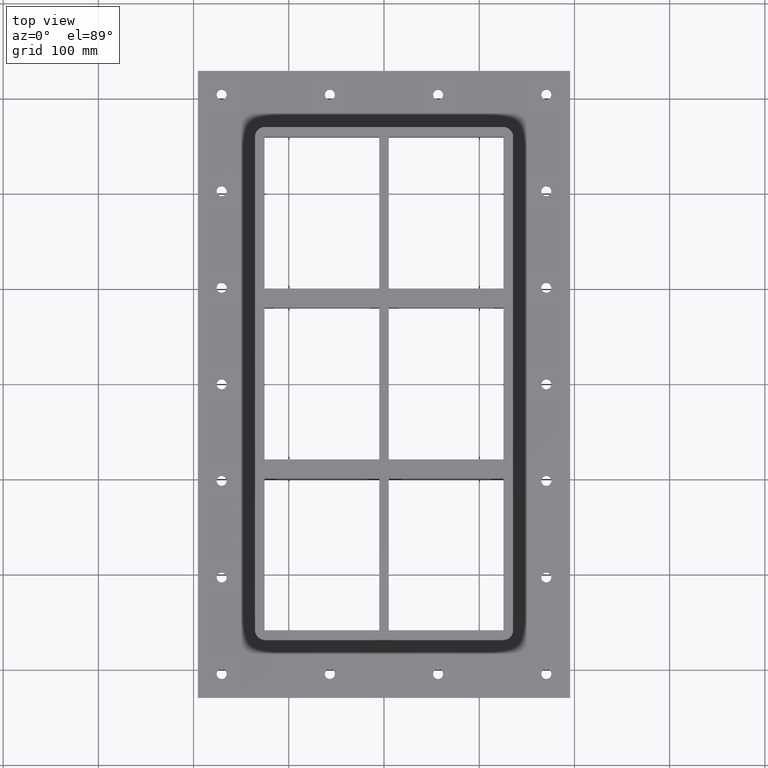
[diagram: clean part render]
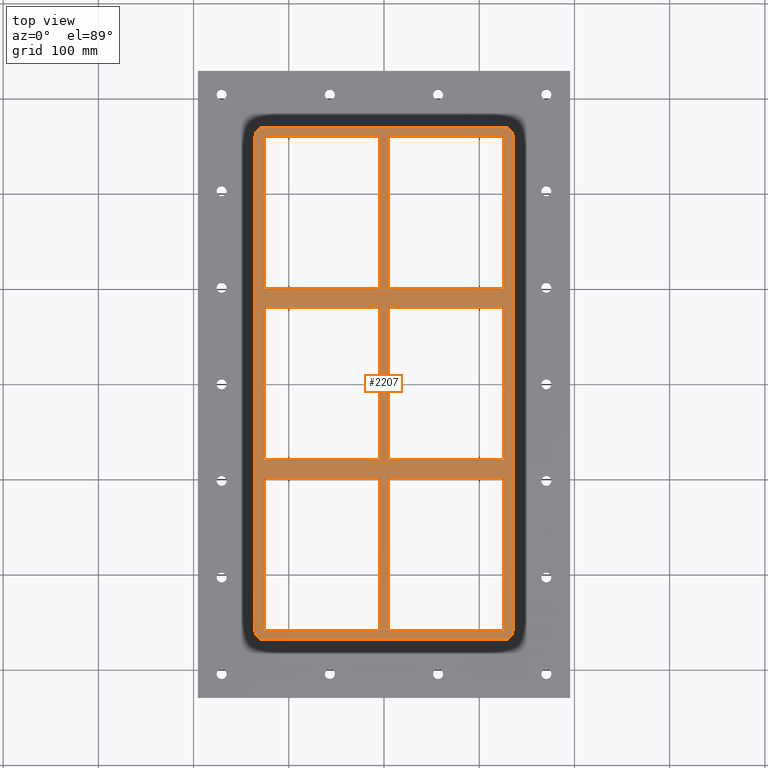
[diagram: same view with one face highlighted and labeled with its STEP entity id]
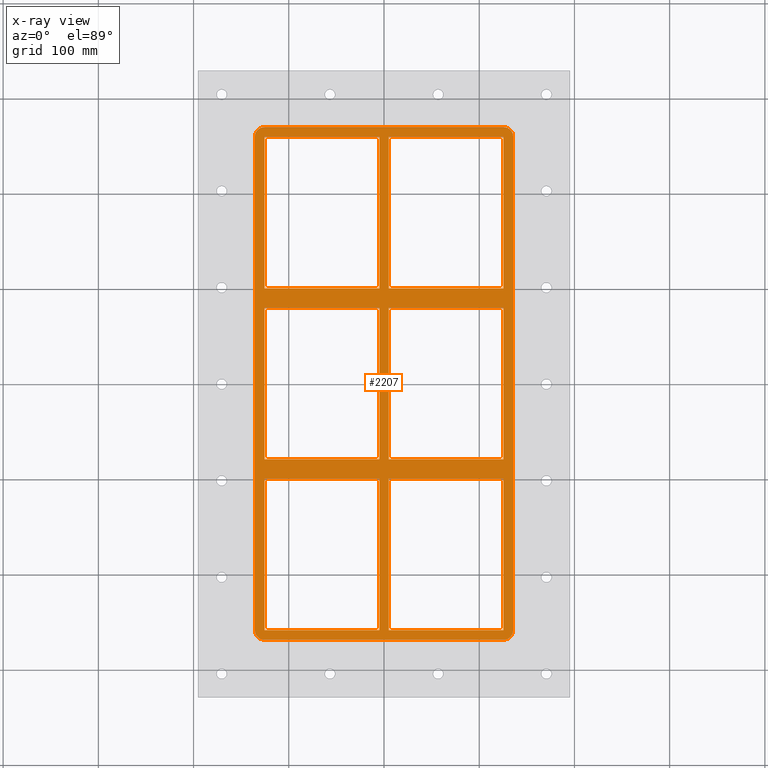
[diagram: x-ray of the same camera — body ghosted, the highlighted face saturated]
A machine part, top view. The second image highlights one B-rep face of the part: STEP entity #2207.
The next image is the same camera in x-ray: the body ghosted, the highlighted face saturated — about 0% of this face is hidden behind the body in this view.
In plain terms, the highlighted planar face has unit normal (0, 0, 1).
Its self-contained STEP definition (entity closure, byte-faithful):
#1006=CARTESIAN_POINT('',(135.50000000000006,-259.25,30.0));
#1007=VERTEX_POINT('',#1006);
#1014=CARTESIAN_POINT('',(125.50000000000003,-269.25,30.0));
#1015=VERTEX_POINT('',#1014);
#1016=CARTESIAN_POINT('',(125.50000000000004,-259.25,30.0));
#1017=DIRECTION('',(0.0,0.0,-1.0));
#1018=DIRECTION('',(0.707106781186547,-0.707106781186547,0.0));
#1019=AXIS2_PLACEMENT_3D('',#1016,#1017,#1018);
#1020=CIRCLE('',#1019,9.999999999999998);
#1021=EDGE_CURVE('',#1007,#1015,#1020,.T.);
#1062=CARTESIAN_POINT('',(135.49999999999994,259.25000000000006,30.0));
#1063=VERTEX_POINT('',#1062);
#1070=CARTESIAN_POINT('',(135.50000000000006,-259.25,30.0));
#1071=DIRECTION('',(0.0,1.0,0.0));
#1072=VECTOR('',#1071,518.5);
#1073=LINE('',#1070,#1072);
#1074=EDGE_CURVE('',#1007,#1063,#1073,.T.);
#1111=CARTESIAN_POINT('',(125.49999999999994,269.25000000000006,30.0));
#1112=VERTEX_POINT('',#1111);
#1119=CARTESIAN_POINT('',(125.49999999999994,259.25000000000006,30.0));
#1120=DIRECTION('',(0.0,0.0,-1.0));
#1121=DIRECTION('',(0.707106781186547,0.707106781186547,0.0));
#1122=AXIS2_PLACEMENT_3D('',#1119,#1120,#1121);
#1123=CIRCLE('',#1122,9.999999999999998);
#1124=EDGE_CURVE('',#1112,#1063,#1123,.T.);
#1160=CARTESIAN_POINT('',(-125.50000000000009,269.25000000000006,30.0));
#1161=VERTEX_POINT('',#1160);
#1168=CARTESIAN_POINT('',(125.49999999999994,269.25000000000006,30.0));
#1169=DIRECTION('',(-1.0,0.0,0.0));
#1170=VECTOR('',#1169,251.0);
#1171=LINE('',#1168,#1170);
#1172=EDGE_CURVE('',#1112,#1161,#1171,.T.);
#1450=CARTESIAN_POINT('',(-125.49999999999991,-269.24999999999994,30.0));
#1451=VERTEX_POINT('',#1450);
#1452=CARTESIAN_POINT('',(-125.49999999999991,-269.24999999999994,30.0));
#1453=DIRECTION('',(1.0,0.0,0.0));
#1454=VECTOR('',#1453,250.99999999999994);
#1455=LINE('',#1452,#1454);
#1456=EDGE_CURVE('',#1451,#1015,#1455,.T.);
#1474=CARTESIAN_POINT('',(-135.49999999999991,-259.24999999999989,30.0));
#1475=VERTEX_POINT('',#1474);
#1476=CARTESIAN_POINT('',(-125.49999999999991,-259.24999999999989,30.0));
#1477=DIRECTION('',(0.0,0.0,-1.0));
#1478=DIRECTION('',(-0.707106781186547,-0.707106781186547,0.0));
#1479=AXIS2_PLACEMENT_3D('',#1476,#1477,#1478);
#1480=CIRCLE('',#1479,9.999999999999998);
#1481=EDGE_CURVE('',#1451,#1475,#1480,.T.);
#1498=CARTESIAN_POINT('',(-135.50000000000009,259.25000000000006,30.0));
#1499=VERTEX_POINT('',#1498);
#1506=CARTESIAN_POINT('',(-125.50000000000009,259.25000000000006,30.0));
#1507=DIRECTION('',(0.0,0.0,-1.0));
#1508=DIRECTION('',(-0.707106781186547,0.707106781186547,0.0));
#1509=AXIS2_PLACEMENT_3D('',#1506,#1507,#1508);
#1510=CIRCLE('',#1509,9.999999999999998);
#1511=EDGE_CURVE('',#1499,#1161,#1510,.T.);
#1557=CARTESIAN_POINT('',(4.999999999999965,259.25000000000011,30.0));
#1558=VERTEX_POINT('',#1557);
#1565=CARTESIAN_POINT('',(5.0,99.749999999999872,30.0));
#1566=VERTEX_POINT('',#1565);
#1567=CARTESIAN_POINT('',(4.999999999999999,99.749999999999872,30.0));
#1568=DIRECTION('',(0.0,1.0,0.0));
#1569=VECTOR('',#1568,159.50000000000023);
#1570=LINE('',#1567,#1569);
#1571=EDGE_CURVE('',#1566,#1558,#1570,.T.);
#1589=CARTESIAN_POINT('',(125.5,99.750000000000085,30.0));
#1590=VERTEX_POINT('',#1589);
#1591=CARTESIAN_POINT('',(125.5,99.750000000000085,30.0));
#1592=DIRECTION('',(-1.0,0.0,0.0));
#1593=VECTOR('',#1592,120.5);
#1594=LINE('',#1591,#1593);
#1595=EDGE_CURVE('',#1590,#1566,#1594,.T.);
#1613=CARTESIAN_POINT('',(125.49999999999999,259.25000000000011,30.0));
#1614=VERTEX_POINT('',#1613);
#1615=CARTESIAN_POINT('',(125.49999999999997,259.25000000000011,30.0));
#1616=DIRECTION('',(0.0,-1.0,0.0));
#1617=VECTOR('',#1616,159.50000000000003);
#1618=LINE('',#1615,#1617);
#1619=EDGE_CURVE('',#1614,#1590,#1618,.T.);
#1637=CARTESIAN_POINT('',(4.999999999999965,259.25000000000011,30.0));
#1638=DIRECTION('',(1.0,0.0,0.0));
#1639=VECTOR('',#1638,120.50000000000003);
#1640=LINE('',#1637,#1639);
#1641=EDGE_CURVE('',#1558,#1614,#1640,.T.);
#1653=CARTESIAN_POINT('',(5.000000000000018,79.750000000000099,30.0));
#1654=VERTEX_POINT('',#1653);
#1661=CARTESIAN_POINT('',(5.000000000000053,-79.750000000000114,30.0));
#1662=VERTEX_POINT('',#1661);
#1663=CARTESIAN_POINT('',(5.000000000000053,-79.750000000000114,30.0));
#1664=DIRECTION('',(0.0,1.0,0.0));
#1665=VECTOR('',#1664,159.5000000000002);
#1666=LINE('',#1663,#1665);
#1667=EDGE_CURVE('',#1662,#1654,#1666,.T.);
#1685=CARTESIAN_POINT('',(125.50000000000006,-79.749999999999915,30.0));
#1686=VERTEX_POINT('',#1685);
#1687=CARTESIAN_POINT('',(125.50000000000006,-79.749999999999901,30.0));
#1688=DIRECTION('',(-1.0,0.0,0.0));
#1689=VECTOR('',#1688,120.5);
#1690=LINE('',#1687,#1689);
#1691=EDGE_CURVE('',#1686,#1662,#1690,.T.);
#1709=CARTESIAN_POINT('',(125.50000000000003,79.750000000000099,30.0));
#1710=VERTEX_POINT('',#1709);
#1711=CARTESIAN_POINT('',(125.50000000000004,79.750000000000099,30.0));
#1712=DIRECTION('',(0.0,-1.0,0.0));
#1713=VECTOR('',#1712,159.5);
#1714=LINE('',#1711,#1713);
#1715=EDGE_CURVE('',#1710,#1686,#1714,.T.);
#1733=CARTESIAN_POINT('',(5.000000000000018,79.750000000000099,30.0));
#1734=DIRECTION('',(1.0,0.0,0.0));
#1735=VECTOR('',#1734,120.5);
#1736=LINE('',#1733,#1735);
#1737=EDGE_CURVE('',#1654,#1710,#1736,.T.);
#1749=CARTESIAN_POINT('',(5.000000000000071,-99.749999999999915,30.0));
#1750=VERTEX_POINT('',#1749);
#1757=CARTESIAN_POINT('',(5.000000000000107,-259.25000000000017,30.0));
#1758=VERTEX_POINT('',#1757);
#1759=CARTESIAN_POINT('',(5.000000000000108,-259.25000000000011,30.0));
#1760=DIRECTION('',(0.0,1.0,0.0));
#1761=VECTOR('',#1760,159.50000000000023);
#1762=LINE('',#1759,#1761);
#1763=EDGE_CURVE('',#1758,#1750,#1762,.T.);
#1781=CARTESIAN_POINT('',(125.50000000000011,-259.24999999999989,30.0));
#1782=VERTEX_POINT('',#1781);
#1783=CARTESIAN_POINT('',(125.50000000000011,-259.24999999999989,30.0));
#1784=DIRECTION('',(-1.0,0.0,0.0));
#1785=VECTOR('',#1784,120.50000000000001);
#1786=LINE('',#1783,#1785);
#1787=EDGE_CURVE('',#1782,#1758,#1786,.T.);
#1805=CARTESIAN_POINT('',(125.5000000000001,-99.749999999999915,30.0));
#1806=VERTEX_POINT('',#1805);
#1807=CARTESIAN_POINT('',(125.5000000000001,-99.749999999999901,30.0));
#1808=DIRECTION('',(0.0,-1.0,0.0));
#1809=VECTOR('',#1808,159.5);
#1810=LINE('',#1807,#1809);
#1811=EDGE_CURVE('',#1806,#1782,#1810,.T.);
#1829=CARTESIAN_POINT('',(5.000000000000071,-99.749999999999915,30.0));
#1830=DIRECTION('',(1.0,0.0,0.0));
#1831=VECTOR('',#1830,120.50000000000003);
#1832=LINE('',#1829,#1831);
#1833=EDGE_CURVE('',#1750,#1806,#1832,.T.);
#1845=CARTESIAN_POINT('',(-125.50000000000004,259.25000000000011,30.0));
#1846=VERTEX_POINT('',#1845);
#1853=CARTESIAN_POINT('',(-125.5,99.749999999999872,30.0));
#1854=VERTEX_POINT('',#1853);
#1855=CARTESIAN_POINT('',(-125.50000000000001,99.749999999999872,30.0));
#1856=DIRECTION('',(0.0,1.0,0.0));
#1857=VECTOR('',#1856,159.50000000000023);
#1858=LINE('',#1855,#1857);
#1859=EDGE_CURVE('',#1854,#1846,#1858,.T.);
#1877=CARTESIAN_POINT('',(-5.0,99.750000000000085,30.0));
#1878=VERTEX_POINT('',#1877);
#1879=CARTESIAN_POINT('',(-5.0,99.750000000000085,30.0));
#1880=DIRECTION('',(-1.0,0.0,0.0));
#1881=VECTOR('',#1880,120.5);
#1882=LINE('',#1879,#1881);
#1883=EDGE_CURVE('',#1878,#1854,#1882,.T.);
#1901=CARTESIAN_POINT('',(-5.000000000000027,259.25000000000011,30.0));
#1902=VERTEX_POINT('',#1901);
#1903=CARTESIAN_POINT('',(-5.000000000000026,259.25000000000011,30.0));
#1904=DIRECTION('',(0.0,-1.0,0.0));
#1905=VECTOR('',#1904,159.50000000000003);
#1906=LINE('',#1903,#1905);
#1907=EDGE_CURVE('',#1902,#1878,#1906,.T.);
#1925=CARTESIAN_POINT('',(-125.50000000000004,259.25000000000011,30.0));
#1926=DIRECTION('',(1.0,0.0,0.0));
#1927=VECTOR('',#1926,120.50000000000001);
#1928=LINE('',#1925,#1927);
#1929=EDGE_CURVE('',#1846,#1902,#1928,.T.);
#1941=CARTESIAN_POINT('',(-125.49999999999999,79.750000000000099,30.0));
#1942=VERTEX_POINT('',#1941);
#1949=CARTESIAN_POINT('',(-125.49999999999996,-79.750000000000114,30.0));
#1950=VERTEX_POINT('',#1949);
#1951=CARTESIAN_POINT('',(-125.49999999999996,-79.750000000000114,30.0));
#1952=DIRECTION('',(0.0,1.0,0.0));
#1953=VECTOR('',#1952,159.5000000000002);
#1954=LINE('',#1951,#1953);
#1955=EDGE_CURVE('',#1950,#1942,#1954,.T.);
#1973=CARTESIAN_POINT('',(-4.999999999999947,-79.749999999999915,30.0));
#1974=VERTEX_POINT('',#1973);
#1975=CARTESIAN_POINT('',(-4.999999999999947,-79.749999999999915,30.0));
#1976=DIRECTION('',(-1.0,0.0,0.0));
#1977=VECTOR('',#1976,120.50000000000001);
#1978=LINE('',#1975,#1977);
#1979=EDGE_CURVE('',#1974,#1950,#1978,.T.);
#1997=CARTESIAN_POINT('',(-4.999999999999973,79.750000000000099,30.0));
#1998=VERTEX_POINT('',#1997);
#1999=CARTESIAN_POINT('',(-4.999999999999973,79.750000000000114,30.0));
#2000=DIRECTION('',(0.0,-1.0,0.0));
#2001=VECTOR('',#2000,159.50000000000003);
#2002=LINE('',#1999,#2001);
#2003=EDGE_CURVE('',#1998,#1974,#2002,.T.);
#2021=CARTESIAN_POINT('',(-125.49999999999999,79.750000000000099,30.0));
#2022=DIRECTION('',(1.0,0.0,0.0));
#2023=VECTOR('',#2022,120.50000000000001);
#2024=LINE('',#2021,#2023);
#2025=EDGE_CURVE('',#1942,#1998,#2024,.T.);
#2037=CARTESIAN_POINT('',(-125.49999999999994,-99.749999999999886,30.0));
#2038=VERTEX_POINT('',#2037);
#2045=CARTESIAN_POINT('',(-125.4999999999999,-259.25000000000011,30.0));
#2046=VERTEX_POINT('',#2045);
#2047=CARTESIAN_POINT('',(-125.49999999999991,-259.25000000000011,30.0));
#2048=DIRECTION('',(0.0,1.0,0.0));
#2049=VECTOR('',#2048,159.50000000000023);
#2050=LINE('',#2047,#2049);
#2051=EDGE_CURVE('',#2046,#2038,#2050,.T.);
#2069=CARTESIAN_POINT('',(-4.999999999999893,-259.24999999999989,30.0));
#2070=VERTEX_POINT('',#2069);
#2071=CARTESIAN_POINT('',(-4.999999999999893,-259.24999999999989,30.0));
#2072=DIRECTION('',(-1.0,0.0,0.0));
#2073=VECTOR('',#2072,120.5);
#2074=LINE('',#2071,#2073);
#2075=EDGE_CURVE('',#2070,#2046,#2074,.T.);
#2093=CARTESIAN_POINT('',(-4.99999999999992,-99.749999999999886,30.0));
#2094=VERTEX_POINT('',#2093);
#2095=CARTESIAN_POINT('',(-4.99999999999992,-99.749999999999886,30.0));
#2096=DIRECTION('',(0.0,-1.0,0.0));
#2097=VECTOR('',#2096,159.5);
#2098=LINE('',#2095,#2097);
#2099=EDGE_CURVE('',#2094,#2070,#2098,.T.);
#2117=CARTESIAN_POINT('',(-125.49999999999994,-99.749999999999886,30.0));
#2118=DIRECTION('',(1.0,0.0,0.0));
#2119=VECTOR('',#2118,120.50000000000003);
#2120=LINE('',#2117,#2119);
#2121=EDGE_CURVE('',#2038,#2094,#2120,.T.);
#2134=CARTESIAN_POINT('',(-135.50000000000009,259.25000000000006,30.0));
#2135=DIRECTION('',(0.0,-1.0,0.0));
#2136=VECTOR('',#2135,518.5);
#2137=LINE('',#2134,#2136);
#2138=EDGE_CURVE('',#1499,#1475,#2137,.T.);
#2156=CARTESIAN_POINT('',(5.266530E-015,5.523274E-014,30.0));
#2157=DIRECTION('',(0.0,0.0,1.0));
#2158=DIRECTION('',(1.0,0.0,0.0));
#2159=AXIS2_PLACEMENT_3D('',#2156,#2157,#2158);
#2160=PLANE('',#2159);
#2161=ORIENTED_EDGE('',*,*,#1021,.F.);
#2162=ORIENTED_EDGE('',*,*,#1074,.T.);
#2163=ORIENTED_EDGE('',*,*,#1124,.F.);
#2164=ORIENTED_EDGE('',*,*,#1172,.T.);
#2165=ORIENTED_EDGE('',*,*,#1511,.F.);
#2166=ORIENTED_EDGE('',*,*,#2138,.T.);
#2167=ORIENTED_EDGE('',*,*,#1481,.F.);
#2168=ORIENTED_EDGE('',*,*,#1456,.T.);
#2169=EDGE_LOOP('',(#2161,#2162,#2163,#2164,#2165,#2166,#2167,#2168));
#2170=FACE_OUTER_BOUND('',#2169,.T.);
#2171=ORIENTED_EDGE('',*,*,#1571,.T.);
#2172=ORIENTED_EDGE('',*,*,#1641,.T.);
#2173=ORIENTED_EDGE('',*,*,#1619,.T.);
#2174=ORIENTED_EDGE('',*,*,#1595,.T.);
#2175=EDGE_LOOP('',(#2171,#2172,#2173,#2174));
#2176=FACE_BOUND('',#2175,.T.);
#2177=ORIENTED_EDGE('',*,*,#1667,.T.);
#2178=ORIENTED_EDGE('',*,*,#1737,.T.);
#2179=ORIENTED_EDGE('',*,*,#1715,.T.);
#2180=ORIENTED_EDGE('',*,*,#1691,.T.);
#2181=EDGE_LOOP('',(#2177,#2178,#2179,#2180));
#2182=FACE_BOUND('',#2181,.T.);
#2183=ORIENTED_EDGE('',*,*,#1763,.T.);
#2184=ORIENTED_EDGE('',*,*,#1833,.T.);
#2185=ORIENTED_EDGE('',*,*,#1811,.T.);
#2186=ORIENTED_EDGE('',*,*,#1787,.T.);
#2187=EDGE_LOOP('',(#2183,#2184,#2185,#2186));
#2188=FACE_BOUND('',#2187,.T.);
#2189=ORIENTED_EDGE('',*,*,#1859,.T.);
#2190=ORIENTED_EDGE('',*,*,#1929,.T.);
#2191=ORIENTED_EDGE('',*,*,#1907,.T.);
#2192=ORIENTED_EDGE('',*,*,#1883,.T.);
#2193=EDGE_LOOP('',(#2189,#2190,#2191,#2192));
#2194=FACE_BOUND('',#2193,.T.);
#2195=ORIENTED_EDGE('',*,*,#1955,.T.);
#2196=ORIENTED_EDGE('',*,*,#2025,.T.);
#2197=ORIENTED_EDGE('',*,*,#2003,.T.);
#2198=ORIENTED_EDGE('',*,*,#1979,.T.);
#2199=EDGE_LOOP('',(#2195,#2196,#2197,#2198));
#2200=FACE_BOUND('',#2199,.T.);
#2201=ORIENTED_EDGE('',*,*,#2099,.T.);
#2202=ORIENTED_EDGE('',*,*,#2075,.T.);
#2203=ORIENTED_EDGE('',*,*,#2051,.T.);
#2204=ORIENTED_EDGE('',*,*,#2121,.T.);
#2205=EDGE_LOOP('',(#2201,#2202,#2203,#2204));
#2206=FACE_BOUND('',#2205,.T.);
#2207=ADVANCED_FACE('',(#2170,#2176,#2182,#2188,#2194,#2200,#2206),#2160,.T.);